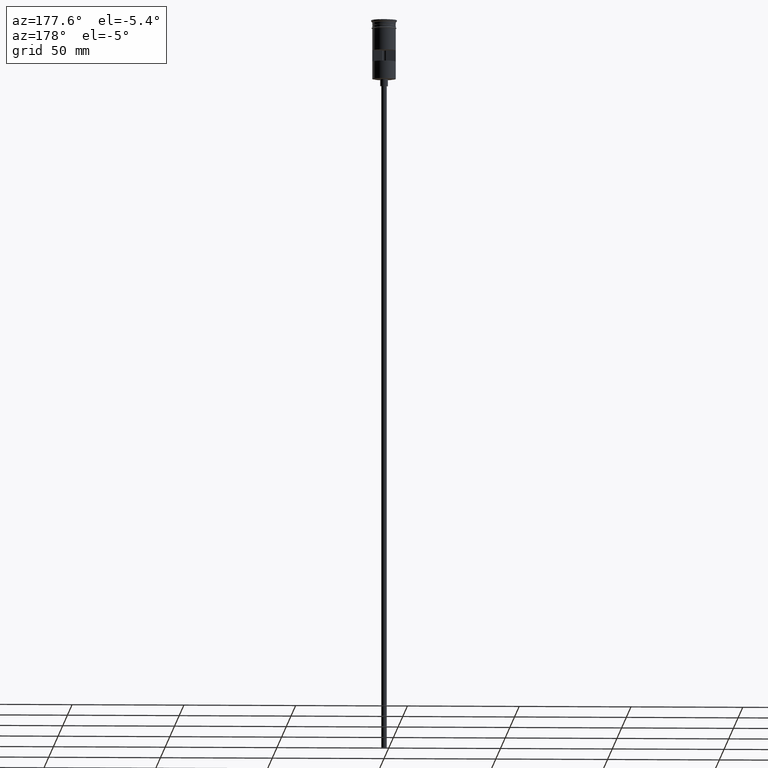
[diagram: clean part render]
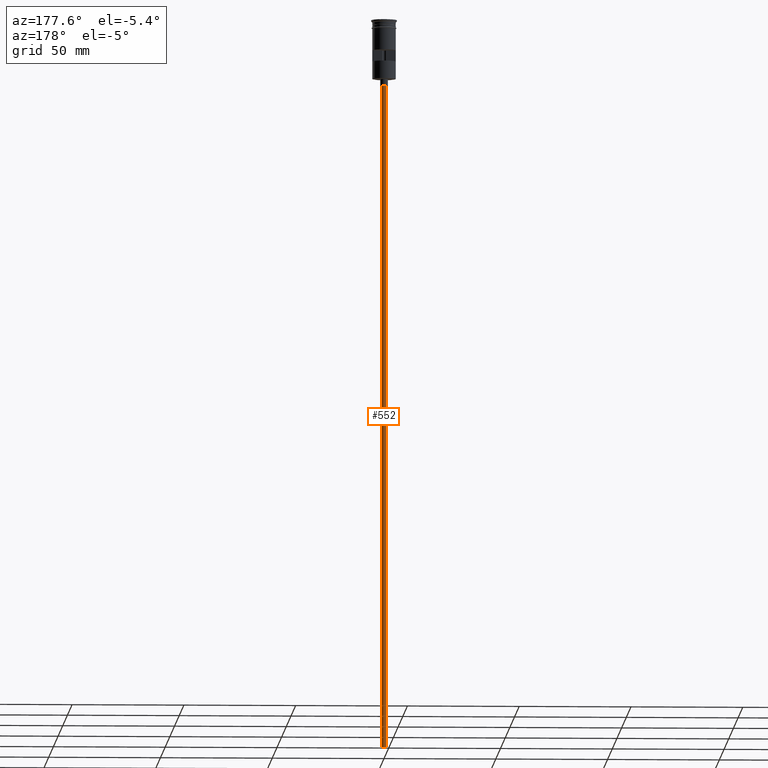
[diagram: same view with one face highlighted and labeled with its STEP entity id]
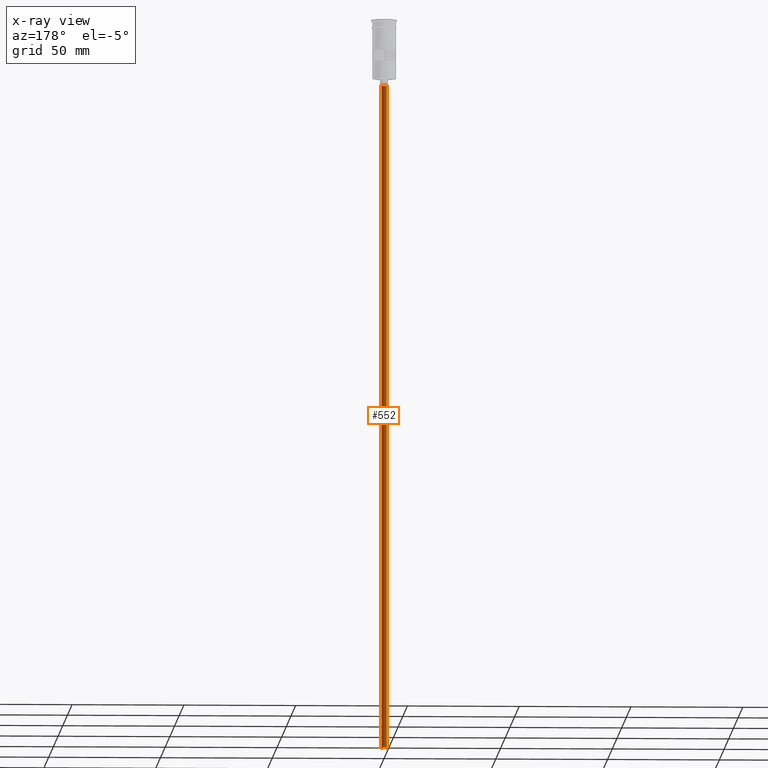
[diagram: x-ray of the same camera — body ghosted, the highlighted face saturated]
A machine part, auxiliary view. The second image highlights one B-rep face of the part: STEP entity #552.
The next image is the same camera in x-ray: the body ghosted, the highlighted face saturated — about 0% of this face is hidden behind the body in this view.
In plain terms, the highlighted cylindrical surface (edge-blend (fillet) strip) has radius 1.25 mm, axis along (-0, -0, 1).
Its self-contained STEP definition (entity closure, byte-faithful):
#1 = CARTESIAN_POINT ( 'NONE',  ( 0.000000000000000000, 0.000000000000000000, -29.50000000000000000 ) ) ;
#81 = EDGE_CURVE ( 'NONE', #1325, #815, #320, .T. ) ;
#106 = CARTESIAN_POINT ( 'NONE',  ( 1.250000000000000000, 0.000000000000000000, -326.5000000000000000 ) ) ;
#128 = CARTESIAN_POINT ( 'NONE',  ( 1.250000000000000000, 0.000000000000000000, -29.50000000000000000 ) ) ;
#228 = DIRECTION ( 'NONE',  ( 1.000000000000000000, 0.000000000000000000, 0.000000000000000000 ) ) ;
#281 = EDGE_CURVE ( 'NONE', #1400, #815, #499, .T. ) ;
#286 = ORIENTED_EDGE ( 'NONE', *, *, #1419, .F. ) ;
#288 = ORIENTED_EDGE ( 'NONE', *, *, #81, .T. ) ;
#320 = CIRCLE ( 'NONE', #384, 1.250000000000000000 ) ;
#376 = DIRECTION ( 'NONE',  ( -0.000000000000000000, -0.000000000000000000, 1.000000000000000000 ) ) ;
#384 = AXIS2_PLACEMENT_3D ( 'NONE', #1, #718, #1105 ) ;
#392 = AXIS2_PLACEMENT_3D ( 'NONE', #1152, #1047, #1388 ) ;
#499 = LINE ( 'NONE', #106, #1595 ) ;
#552 = ADVANCED_FACE ( 'NONE', ( #1001 ), #701, .T. ) ;
#620 = EDGE_LOOP ( 'NONE', ( #286, #1254, #288, #978 ) ) ;
#635 = VERTEX_POINT ( 'NONE', #689 ) ;
#677 = LINE ( 'NONE', #1434, #1226 ) ;
#689 = CARTESIAN_POINT ( 'NONE',  ( -1.250000000000000000, 1.530808498934191571E-16, -326.5000000000000000 ) ) ;
#701 = CYLINDRICAL_SURFACE ( 'NONE', #859, 1.250000000000000000 ) ;
#718 = DIRECTION ( 'NONE',  ( 0.000000000000000000, 0.000000000000000000, -1.000000000000000000 ) ) ;
#815 = VERTEX_POINT ( 'NONE', #128 ) ;
#859 = AXIS2_PLACEMENT_3D ( 'NONE', #1485, #376, #228 ) ;
#978 = ORIENTED_EDGE ( 'NONE', *, *, #281, .F. ) ;
#998 = DIRECTION ( 'NONE',  ( -0.000000000000000000, -0.000000000000000000, 1.000000000000000000 ) ) ;
#1001 = FACE_OUTER_BOUND ( 'NONE', #620, .T. ) ;
#1047 = DIRECTION ( 'NONE',  ( 0.000000000000000000, 0.000000000000000000, -1.000000000000000000 ) ) ;
#1105 = DIRECTION ( 'NONE',  ( -1.000000000000000000, 0.000000000000000000, 0.000000000000000000 ) ) ;
#1144 = EDGE_CURVE ( 'NONE', #635, #1325, #677, .T. ) ;
#1152 = CARTESIAN_POINT ( 'NONE',  ( 0.000000000000000000, 0.000000000000000000, -326.5000000000000000 ) ) ;
#1166 = CARTESIAN_POINT ( 'NONE',  ( 1.250000000000000000, 0.000000000000000000, -326.5000000000000000 ) ) ;
#1226 = VECTOR ( 'NONE', #1334, 1000.000000000000000 ) ;
#1254 = ORIENTED_EDGE ( 'NONE', *, *, #1144, .T. ) ;
#1325 = VERTEX_POINT ( 'NONE', #1407 ) ;
#1334 = DIRECTION ( 'NONE',  ( -0.000000000000000000, -0.000000000000000000, 1.000000000000000000 ) ) ;
#1377 = CIRCLE ( 'NONE', #392, 1.250000000000000000 ) ;
#1388 = DIRECTION ( 'NONE',  ( -1.000000000000000000, 0.000000000000000000, 0.000000000000000000 ) ) ;
#1400 = VERTEX_POINT ( 'NONE', #1166 ) ;
#1407 = CARTESIAN_POINT ( 'NONE',  ( -1.250000000000000000, 1.530808498934191571E-16, -29.50000000000000000 ) ) ;
#1419 = EDGE_CURVE ( 'NONE', #635, #1400, #1377, .T. ) ;
#1434 = CARTESIAN_POINT ( 'NONE',  ( -1.250000000000000000, 1.530808498934191571E-16, -326.5000000000000000 ) ) ;
#1485 = CARTESIAN_POINT ( 'NONE',  ( 0.000000000000000000, 0.000000000000000000, -326.5000000000000000 ) ) ;
#1595 = VECTOR ( 'NONE', #998, 1000.000000000000000 ) ;